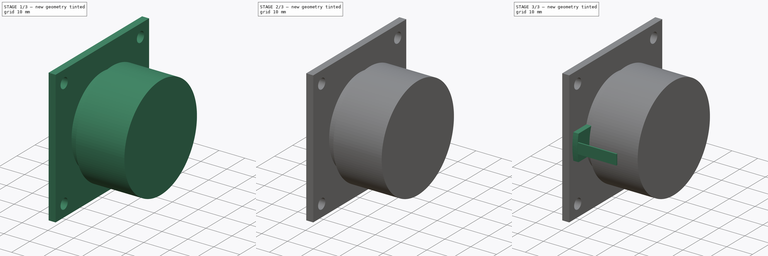
[diagram: build sequence overview — one tinted view per stage of 3, left to right]
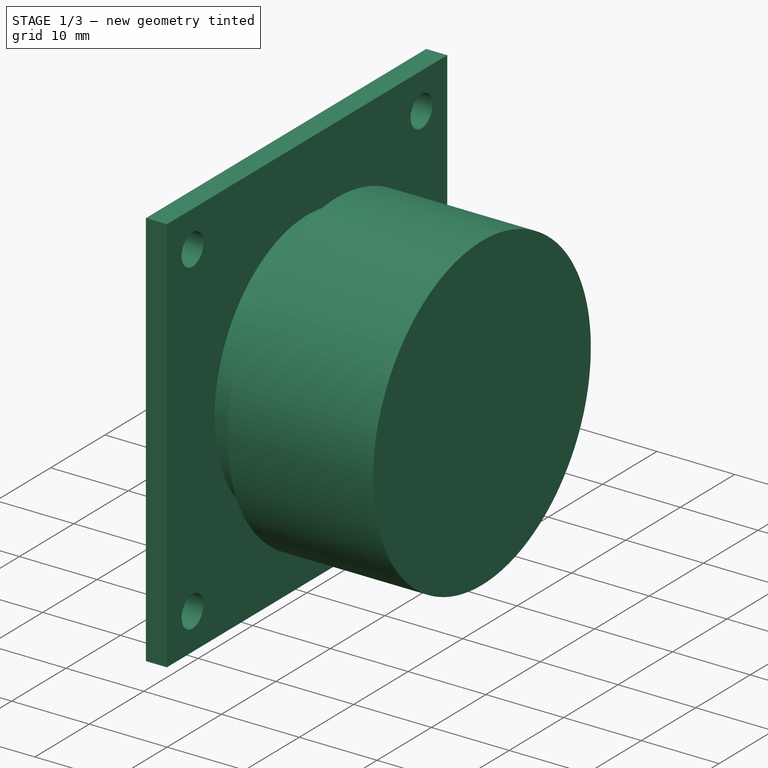
[diagram: stage 1 of 3 — iso view after this stage's code; geometry added in this stage tinted green]
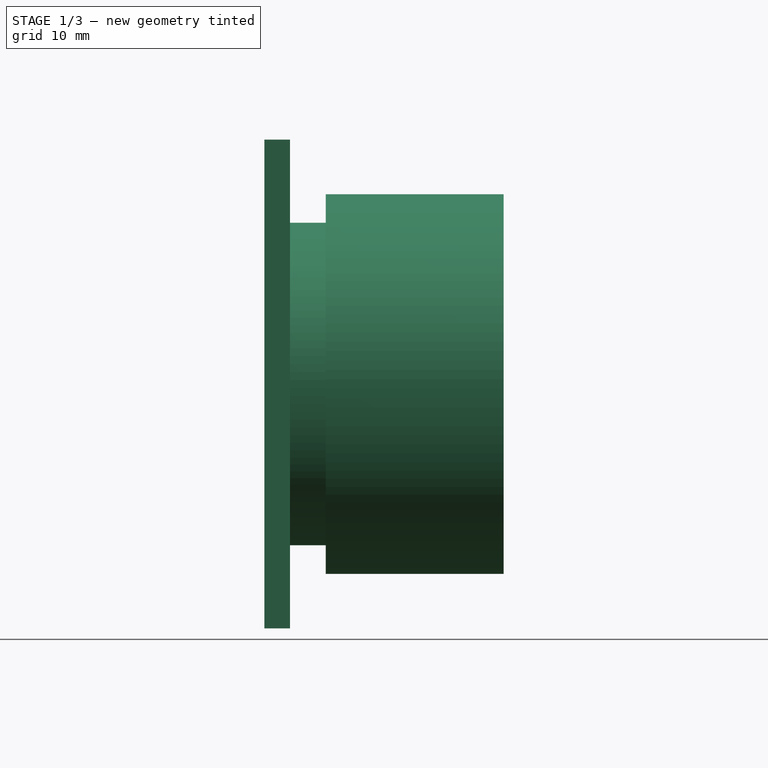
[diagram: stage 1 of 3 — front view after this stage's code; geometry added in this stage tinted green]
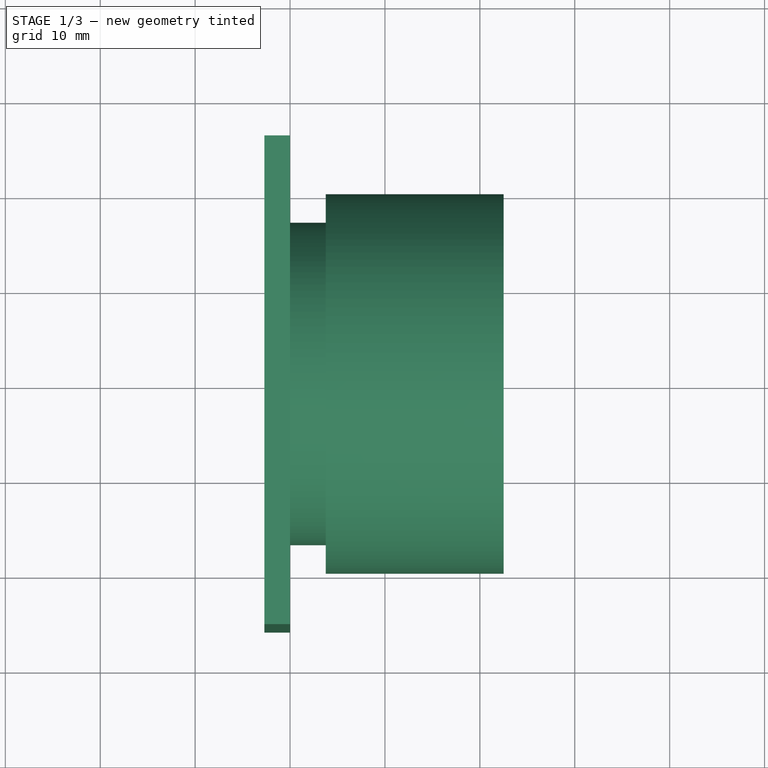
[diagram: stage 1 of 3 — top view after this stage's code; geometry added in this stage tinted green]
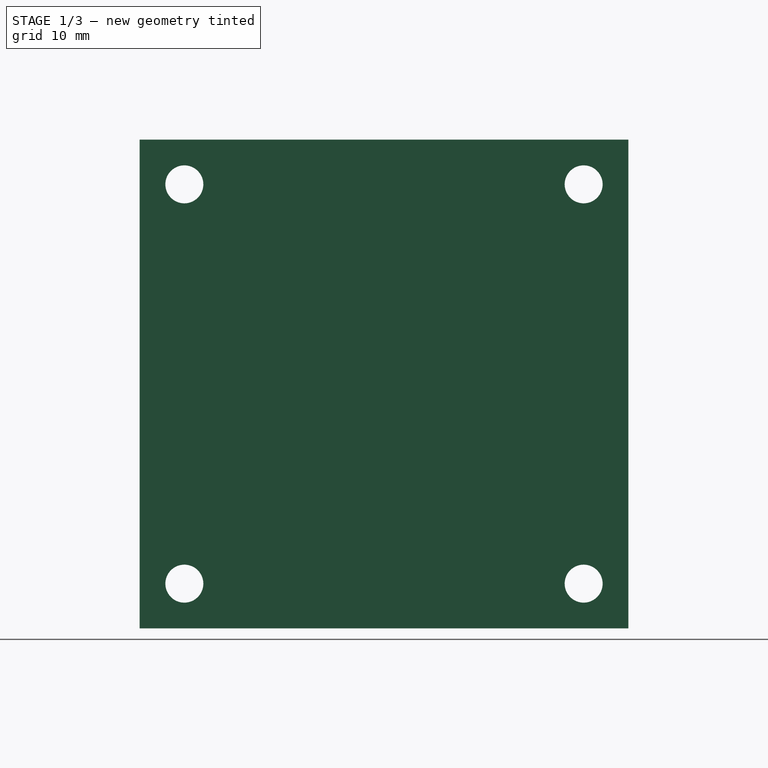
[diagram: stage 1 of 3 — right view after this stage's code; geometry added in this stage tinted green]
FCSTD DOCUMENT  (FreeCAD 0.16R6703 (Git))
Label: sc5
License: All rights reserved
LicenseURL: http://en.wikipedia.org/wiki/All_rights_reserved
objects: Sketcher::SketchObject×5, PartDesign::Pad×4, PartDesign::Revolution×1
note: 15 computed .brp shape members not serialized (recipe doc carries the construction recipe); baked Part::Feature solids carry a one-line shape summary decoded from their .brp

FEATURE [Sketcher::SketchObject] Sketch
  Placement = pos=(0,0,0) rot=(1,0,0;1.5708rad)
  sketch-geometry (7):
    g0: LineSegment StartX=0 StartY=0 StartZ=0 EndX=22.5 EndY=0 EndZ=0
    g1: LineSegment StartX=22.5 StartY=0 StartZ=0 EndX=22.5 EndY=20 EndZ=0
    g2: LineSegment StartX=22.5 StartY=20 StartZ=0 EndX=3.76803 EndY=20 EndZ=0
    g3: LineSegment StartX=3.76803 StartY=20 StartZ=0 EndX=3.76803 EndY=16.9862 EndZ=0
    g4: LineSegment StartX=3.76803 StartY=16.9862 StartZ=0 EndX=-1.23198 EndY=16.9862 EndZ=0
    g5: LineSegment StartX=0 StartY=0 StartZ=0 EndX=0 EndY=4.1328 EndZ=0
    g6: LineSegment StartX=0 StartY=4.1328 StartZ=0 EndX=-1.23198 EndY=16.9862 EndZ=0
  constraints (16):
    c: Coincident(g0,g-1)
    c: PointOnObject(g0,g-1)
    c: Coincident(g1,g0)
    c: Vertical(g1)
    c: Horizontal(g2)
    c: Vertical(g3)
    c: Horizontal(g4)
    c: Distance(g0) = 22.5
    c: Coincident(g2,g1)
    c: Coincident(g3,g4)
    c: Coincident(g3,g2)
    c: Distance(g1) = 20
    c: Distance(g4) = 5
    c: Vertical(g5)
    c: Coincident(g6,g5)
    c: Coincident(g6,g4)
FEATURE [PartDesign::Revolution] Revolution
  Angle = 360
  Axis = (1,0,0)
  Base = (0,0,0)
  Placement = pos=(0,0,0) rot=(1,0,0;1.5708rad)
  ReferenceAxis = -> Sketch [H_Axis]
  Sketch = -> Sketch
FEATURE [Sketcher::SketchObject] Sketch002
  Placement = pos=(0,0,0) rot=(0.707107,0,-0.707107;3.14159rad)
  Support = -> Revolution [Face5]
  expr: Constraints[16] = 59.5 / 2
  sketch-geometry (14):
    g0: LineSegment StartX=-25.75 StartY=25.75 StartZ=0 EndX=25.75 EndY=25.75 EndZ=0
    g1: LineSegment StartX=25.75 StartY=25.75 StartZ=0 EndX=25.75 EndY=-25.75 EndZ=0
    g2: LineSegment StartX=25.75 StartY=-25.75 StartZ=0 EndX=-25.75 EndY=-25.75 EndZ=0
    g3: LineSegment StartX=-25.75 StartY=-25.75 StartZ=0 EndX=-25.75 EndY=25.75 EndZ=0
    g4: LineSegment [constr] StartX=-25.75 StartY=25.75 StartZ=0 EndX=25.75 EndY=-25.75 EndZ=0
    g5: LineSegment [constr] StartX=25.75 StartY=25.75 StartZ=0 EndX=-25.75 EndY=-25.75 EndZ=0
    g6: Circle [constr] CenterX=0 CenterY=0 CenterZ=0 NormalX=0 NormalY=0 NormalZ=1 Radius=29.75
    g7: Circle CenterX=-21.0364 CenterY=21.0364 CenterZ=0 NormalX=0 NormalY=0 NormalZ=1 Radius=2
    g8: Circle CenterX=27.1093 CenterY=20.1378 CenterZ=0 NormalX=0 NormalY=0 NormalZ=1 Radius=0
    g9: Circle CenterX=26.7141 CenterY=-21.6492 CenterZ=0 NormalX=0 NormalY=0 NormalZ=1 Radius=0
    g10: Circle CenterX=-21.0364 CenterY=-21.0364 CenterZ=0 NormalX=0 NormalY=0 NormalZ=1 Radius=2
    g11: Circle CenterX=21.0364 CenterY=-21.0364 CenterZ=0 NormalX=0 NormalY=0 NormalZ=1 Radius=2
    g12: Circle CenterX=21.0364 CenterY=21.0364 CenterZ=0 NormalX=0 NormalY=0 NormalZ=1 Radius=2
    g13: Circle CenterX=0 CenterY=0 CenterZ=0 NormalX=0 NormalY=0 NormalZ=1 Radius=16
  constraints (32):
    c: Coincident(g0,g1)
    c: Coincident(g1,g2)
    c: Coincident(g2,g3)
    c: Coincident(g3,g0)
    c: Horizontal(g0)
    c: Horizontal(g2)
    c: Vertical(g1)
    c: Vertical(g3)
    c: Coincident(g4,g0)
    c: Coincident(g4,g1)
    c: Coincident(g5,g0)
    c: Coincident(g5,g2)
    c: PointOnObject(g-1,g5)
    c: PointOnObject(g-1,g4)
    c: Equal(g1,g0)
    c: Distance(g0) = 51.5
    c: Radius(g6) = 29.75
    c: PointOnObject(g7,g6)
    c: PointOnObject(g10,g6)
    c: PointOnObject(g11,g4)
    c: PointOnObject(g12,g5)
    c: Equal(g12,g7)
    c: Equal(g7,g10)
    c: Equal(g10,g11)
    c: Radius(g7) = 2
    c: Coincident(g6,g-1)
    c: PointOnObject(g7,g4)
    c: PointOnObject(g12,g6)
    c: PointOnObject(g10,g5)
    c: PointOnObject(g11,g6)
    c: Radius(g13) = 16
    c: Coincident(g13,g-1)
FEATURE [PartDesign::Pad] Pad
  Length = 2.7
  Length2 = 100
  Placement = pos=(0,0,0) rot=(1,0,0;1.5708rad)
  Sketch = -> Sketch002
  Type = 0
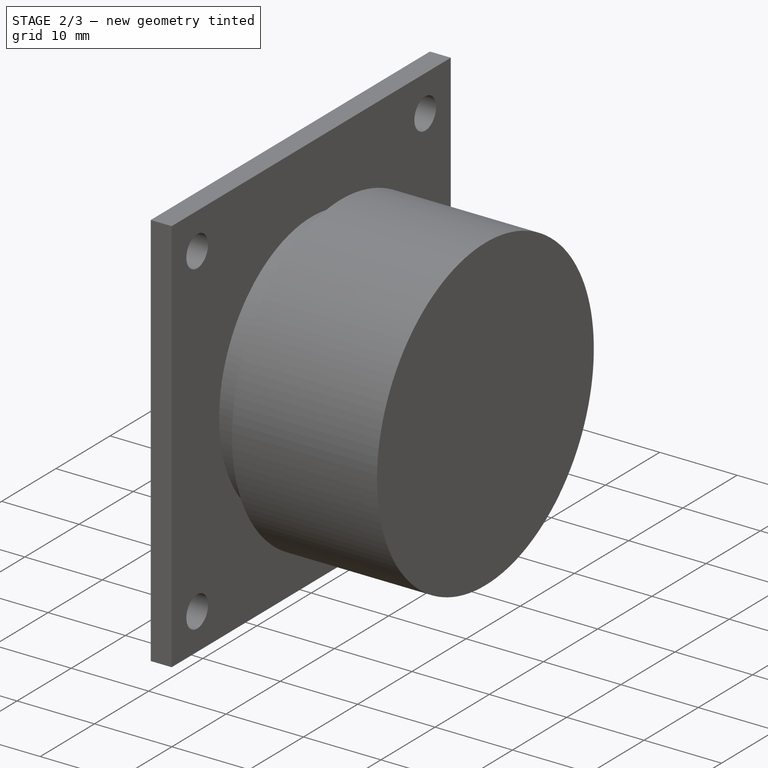
[diagram: stage 2 of 3 — iso view after this stage's code; geometry added in this stage tinted green]
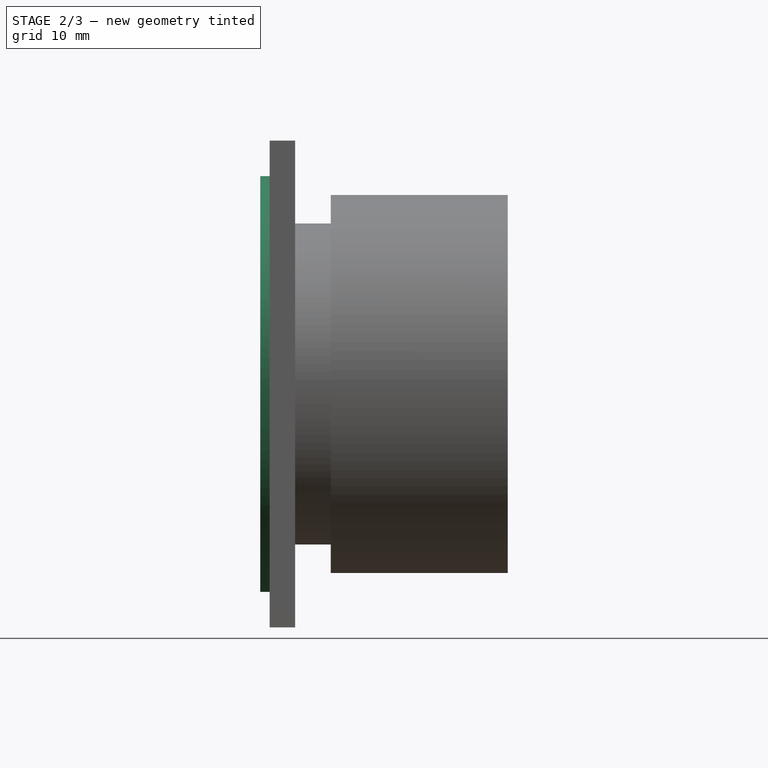
[diagram: stage 2 of 3 — front view after this stage's code; geometry added in this stage tinted green]
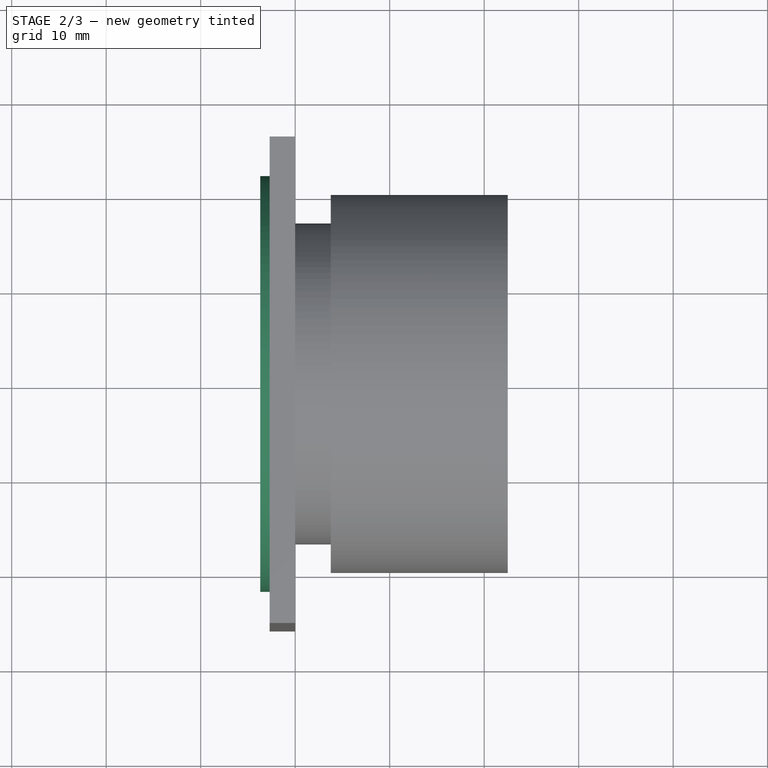
[diagram: stage 2 of 3 — top view after this stage's code; geometry added in this stage tinted green]
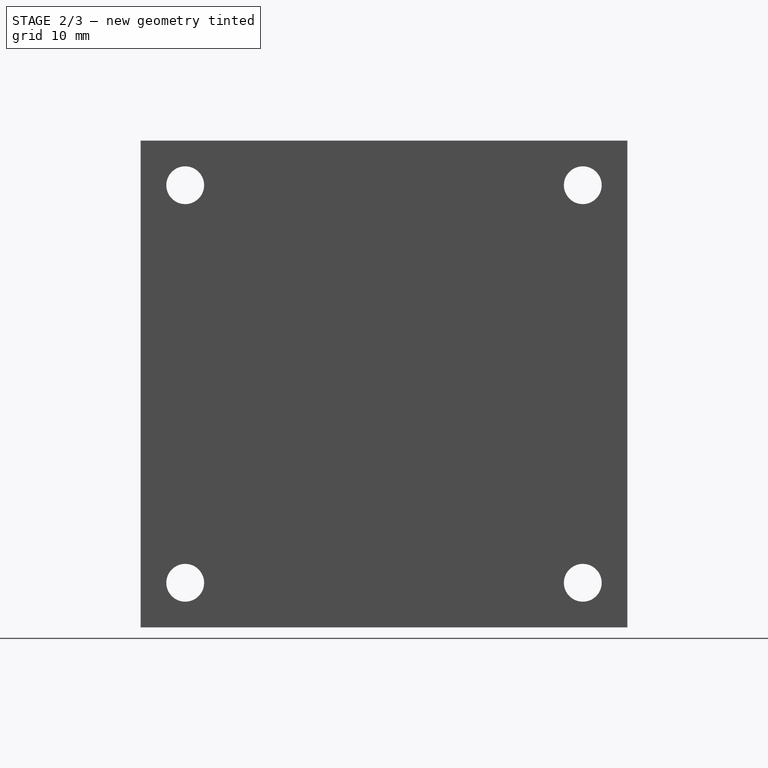
[diagram: stage 2 of 3 — right view after this stage's code; geometry added in this stage tinted green]
FEATURE [Sketcher::SketchObject] Sketch003
  Placement = pos=(-2.7,0,0) rot=(0.707107,0,-0.707107;3.14159rad)
  Support = -> Pad [Face14]
  sketch-geometry (2):
    g0: Circle CenterX=0 CenterY=0 CenterZ=0 NormalX=0 NormalY=0 NormalZ=1 Radius=20
    g1: Circle CenterX=0 CenterY=0 CenterZ=0 NormalX=0 NormalY=0 NormalZ=1 Radius=22
  constraints (4):
    c: Coincident(g0,g-1)
    c: Coincident(g1,g-1)
    c: Radius(g1) = 22
    c: Radius(g0) = 20
FEATURE [PartDesign::Pad] Pad001
  Length = 1
  Length2 = 100
  Placement = pos=(0,0,0) rot=(1,0,0;1.5708rad)
  Sketch = -> Sketch003
  Type = 0
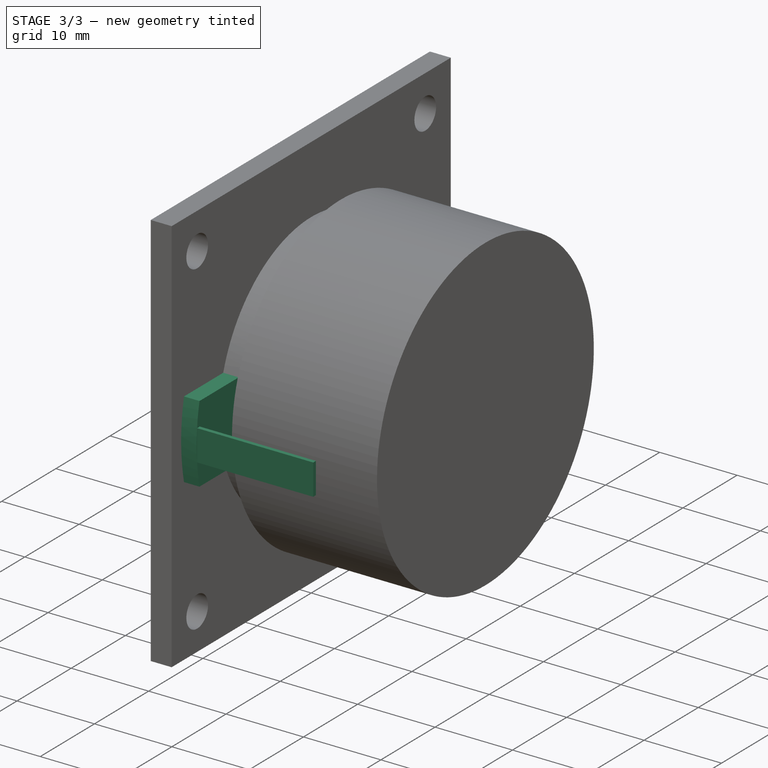
[diagram: stage 3 of 3 — iso view after this stage's code; geometry added in this stage tinted green]
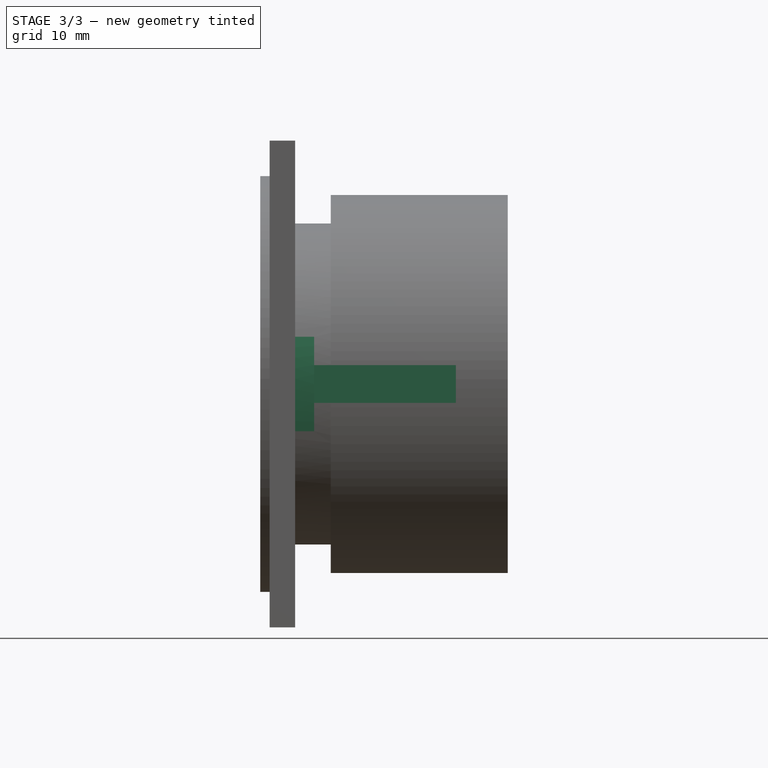
[diagram: stage 3 of 3 — front view after this stage's code; geometry added in this stage tinted green]
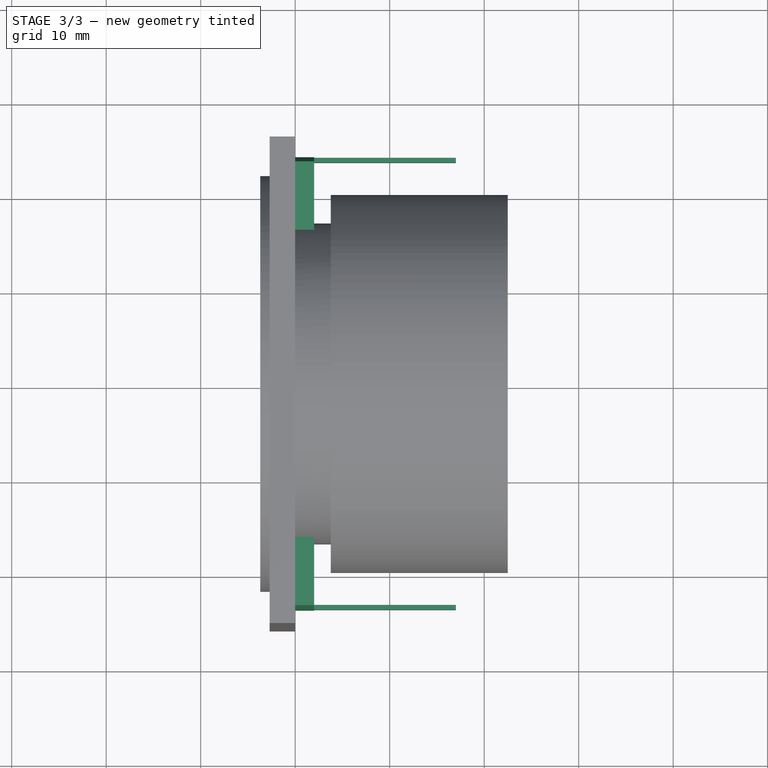
[diagram: stage 3 of 3 — top view after this stage's code; geometry added in this stage tinted green]
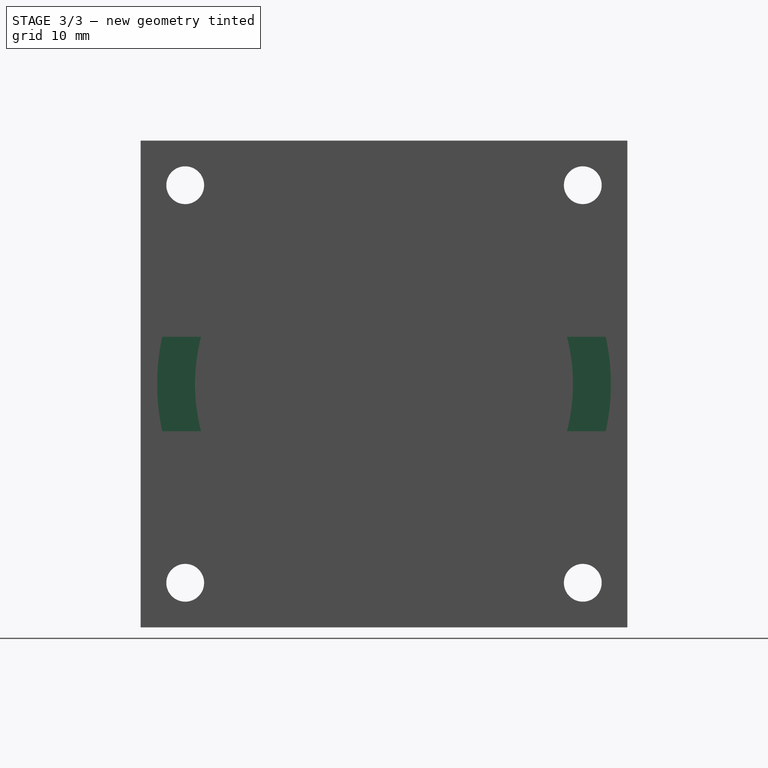
[diagram: stage 3 of 3 — right view after this stage's code; geometry added in this stage tinted green]
FEATURE [Sketcher::SketchObject] Sketch004
  Placement = pos=(0,0,0) rot=(0.707107,0,0.707107;3.14159rad)
  Support = -> Pad001 [Face5]
  sketch-geometry (9):
    g0: ArcOfCircle CenterX=0 CenterY=0 CenterZ=0 NormalX=0 NormalY=0 NormalZ=1 Radius=24 StartAngle=1.36093 EndAngle=1.78067
    g1: ArcOfCircle CenterX=0 CenterY=0 CenterZ=0 NormalX=0 NormalY=0 NormalZ=1 Radius=24 StartAngle=4.50252 EndAngle=4.92226
    g2: ArcOfCircle CenterX=0 CenterY=0 CenterZ=0 NormalX=0 NormalY=0 NormalZ=1 Radius=16.6753 StartAngle=1.26627 EndAngle=1.87533
    g3: ArcOfCircle CenterX=0 CenterY=0 CenterZ=0 NormalX=0 NormalY=0 NormalZ=1 Radius=16.8896 StartAngle=4.41184 EndAngle=5.01293
    g4: GeomPoint [constr] X=0 Y=0 Z=0
    g5: LineSegment StartX=-5 StartY=15.9081 StartZ=0 EndX=-5 EndY=23.4734 EndZ=0
    g6: LineSegment StartX=5 StartY=15.9081 StartZ=0 EndX=5 EndY=23.4734 EndZ=0
    g7: LineSegment StartX=5 StartY=-23.4734 StartZ=0 EndX=5 EndY=-16.1325 EndZ=0
    g8: LineSegment StartX=-5 StartY=-16.1325 StartZ=0 EndX=-5 EndY=-23.4734 EndZ=0
  constraints (25):
    c: PointOnObject(g0,g-2)
    c: PointOnObject(g0,g-1)
    c: PointOnObject(g1,g-2)
    c: Coincident(g1,g-1)
    c: DistanceX(g0,g1) = 0
    c: DistanceX(g1,g0) = 0
    c: Radius(g0) = 24
    c: Radius(g1) = 24
    c: DistanceX(g0,g0) = 10
    c: DistanceX(g0,g-1) = 5
    c: Coincident(g2,g-1)
    c: Coincident(g3,g-1)
    c: Coincident(g4,g-1)
    c: Coincident(g5,g2)
    c: Coincident(g5,g0)
    c: Vertical(g5)
    c: Coincident(g6,g2)
    c: Coincident(g6,g0)
    c: Vertical(g6)
    c: Coincident(g7,g1)
    c: Coincident(g7,g3)
    c: Vertical(g7)
    c: Coincident(g8,g3)
    c: Coincident(g8,g1)
    c: Vertical(g8)
FEATURE [PartDesign::Pad] Pad002
  Length = 2
  Length2 = 100
  Placement = pos=(0,0,0) rot=(1,0,0;1.5708rad)
  Sketch = -> Sketch004
  Type = 0
FEATURE [Sketcher::SketchObject] Sketch005
  ExternalGeometry = -> [Pad002]
  Placement = pos=(2,0,0) rot=(0.707107,0,0.707107;3.14159rad)
  Support = -> Pad002 [Face7]
  sketch-geometry (8):
    g0: LineSegment StartX=-2 StartY=23.9165 StartZ=0 EndX=2 EndY=23.9165 EndZ=0
    g1: LineSegment StartX=2 StartY=23.9165 StartZ=0 EndX=2 EndY=23.4165 EndZ=0
    g2: LineSegment StartX=2 StartY=23.4165 StartZ=0 EndX=-2 EndY=23.4165 EndZ=0
    g3: LineSegment StartX=-2 StartY=23.4165 StartZ=0 EndX=-2 EndY=23.9165 EndZ=0
    g4: LineSegment StartX=-2 StartY=-23.9165 StartZ=0 EndX=2 EndY=-23.9165 EndZ=0
    g5: LineSegment StartX=2 StartY=-23.9165 StartZ=0 EndX=2 EndY=-23.4165 EndZ=0
    g6: LineSegment StartX=2 StartY=-23.4165 StartZ=0 EndX=-2 EndY=-23.4165 EndZ=0
    g7: LineSegment StartX=-2 StartY=-23.4165 StartZ=0 EndX=-2 EndY=-23.9165 EndZ=0
  constraints (24):
    c: Coincident(g0,g1)
    c: Coincident(g1,g2)
    c: Coincident(g2,g3)
    c: Coincident(g3,g0)
    c: Horizontal(g0)
    c: Horizontal(g2)
    c: Vertical(g1)
    c: Vertical(g3)
    c: PointOnObject(g0,g-3)
    c: Distance(g1) = 0.5
    c: Distance(g2) = 4
    c: DistanceX(g2,g-1) = 2
    c: Coincident(g4,g5)
    c: Coincident(g5,g6)
    c: Coincident(g6,g7)
    c: Coincident(g7,g4)
    c: Horizontal(g4)
    c: Horizontal(g6)
    c: Vertical(g5)
    c: Vertical(g7)
    c: PointOnObject(g4,g-4)
    c: Equal(g5,g1)
    c: Equal(g0,g6)
    c: DistanceX(g6,g2) = 0
FEATURE [PartDesign::Pad] Pad003
  Length = 15
  Length2 = 100
  Placement = pos=(0,0,0) rot=(1,0,0;1.5708rad)
  Sketch = -> Sketch005
  Type = 0
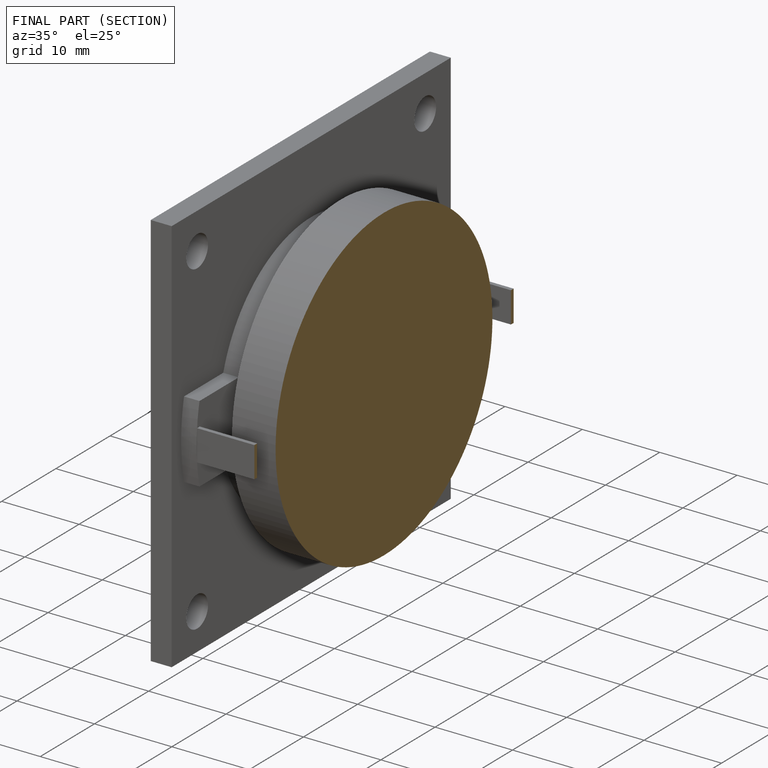
[diagram: finished part — half-section view (interior)]
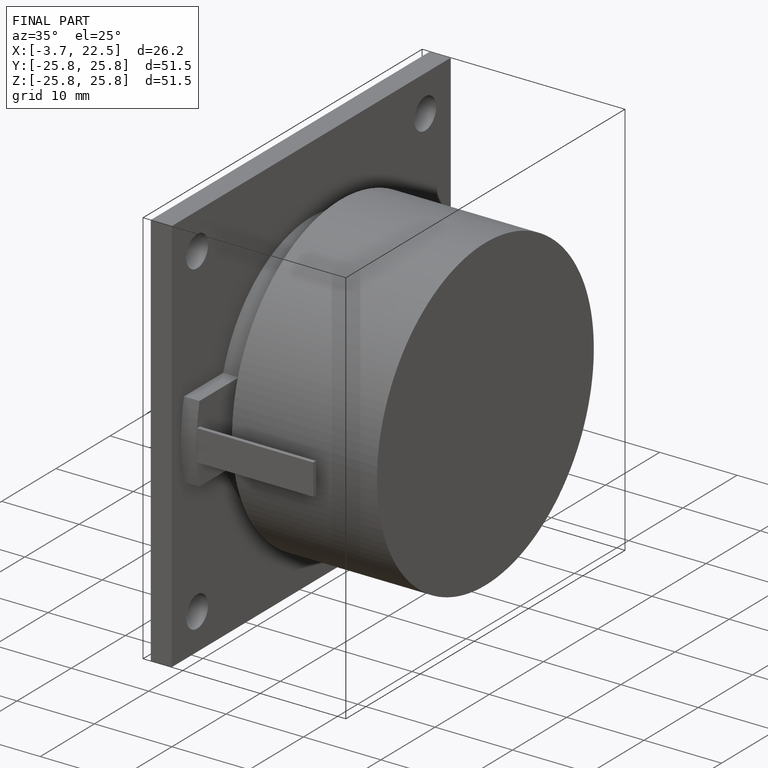
[diagram: finished part — iso view with bounding-box wireframe]
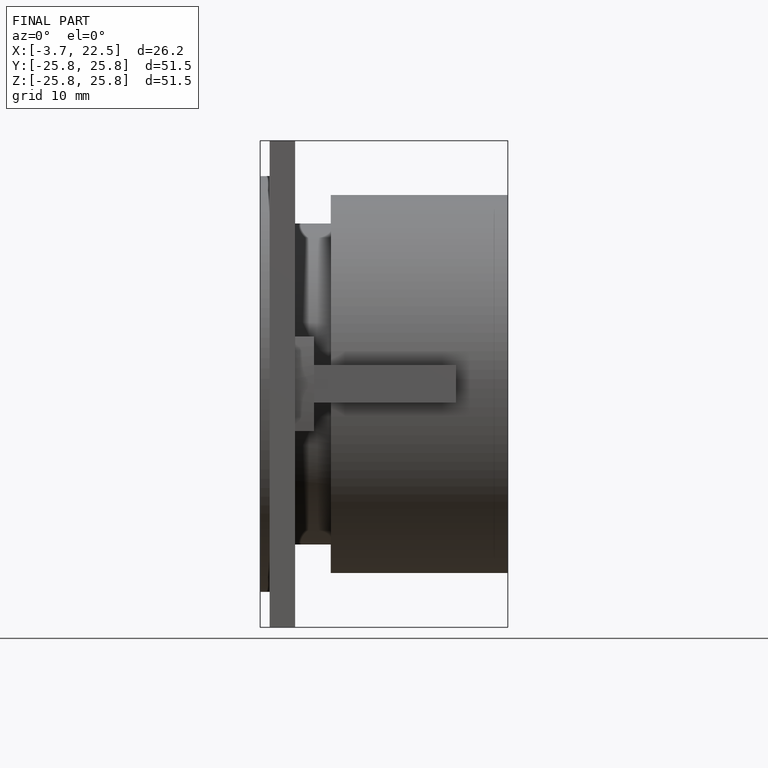
[diagram: finished part — front view with bounding-box wireframe]
